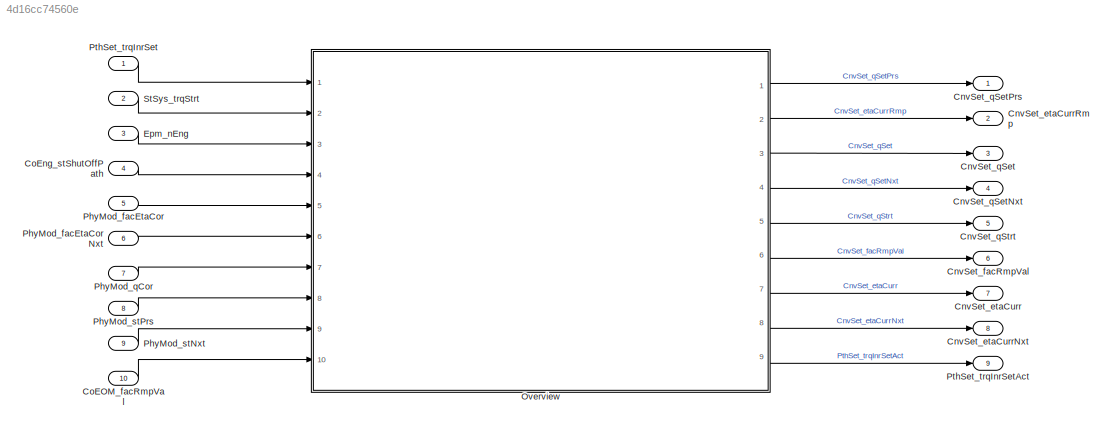
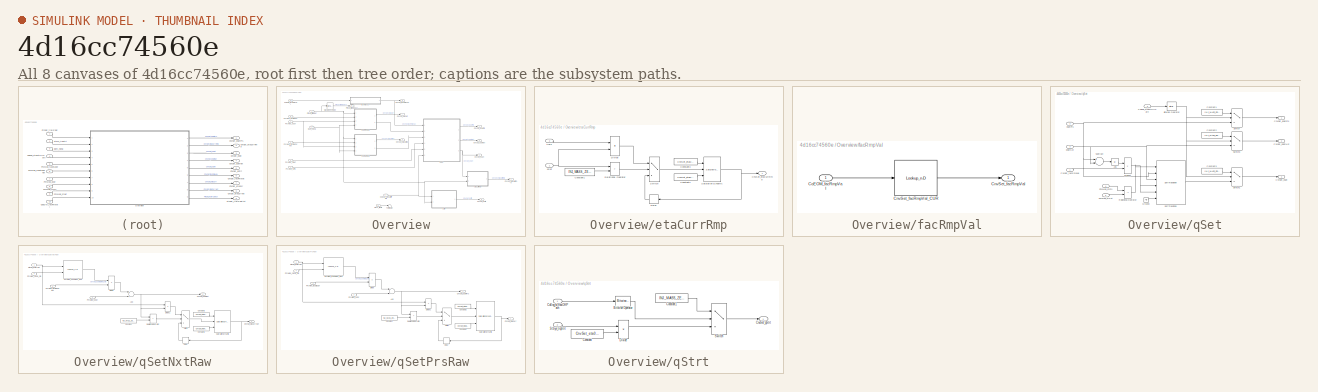
[diagram: thumbnail index - all 8 canvases of the model, root first then tree order]
MODEL slx_4d16cc74560e
KIND model
CONFIG AbsTol = auto
CONFIG EnableMultiTasking = off
CONFIG FixedStep = 0.001
CONFIG MaxStep = auto
CONFIG MinStep = auto
CONFIG RelTol = 1e-3
CONFIG SampleTimeConstraint = Unconstrained
CONFIG Solver = FixedStepDiscrete
CONFIG SolverName = FixedStepDiscrete
CONFIG StartTime = 0.0
CONFIG StopTime = Inf
BLOCK [Outport] CnvSet_etaCurr
  IconDisplay = Port number
  Port = 7
BLOCK [Outport] CnvSet_etaCurrNxt
  IconDisplay = Port number
  Port = 8
BLOCK [Outport] CnvSet_etaCurrRmp
  IconDisplay = Port number
  Port = 2
BLOCK [Outport] CnvSet_facRmpVal
  IconDisplay = Port number
  Port = 6
BLOCK [Outport] CnvSet_qSet
  IconDisplay = Port number
  Port = 3
BLOCK [Outport] CnvSet_qSetNxt
  IconDisplay = Port number
  Port = 4
BLOCK [Outport] CnvSet_qSetPrs
  IconDisplay = Port number
BLOCK [Outport] CnvSet_qStrt
  IconDisplay = Port number
  Port = 5
BLOCK [Inport] CoEOM_facRmpVal
  Description = Central ramp value for operation mode change
  IconDisplay = Port number
  OutDataTypeStr = Fac_10
  OutMax = 31
  OutMin = -31
  Port = 10
  PortDimensions = [1 1]
BLOCK [Inport] CoEng_stShutOffPath
  Description = Active shut-off paths resulting from active reversible,irreversible and afterrun shut-off paths
  IconDisplay = Port number
  OutDataTypeStr = State2
  OutMax = 65535
  OutMin = 0
  Port = 4
  PortDimensions = [1 1]
BLOCK [Inport] Epm_nEng
  Description = Engine speed
  IconDisplay = Port number
  OutDataTypeStr = ERPM
  OutMax = 6000
  OutMin = 0
  Port = 3
  PortDimensions = [1 1]
  Unit = rpm
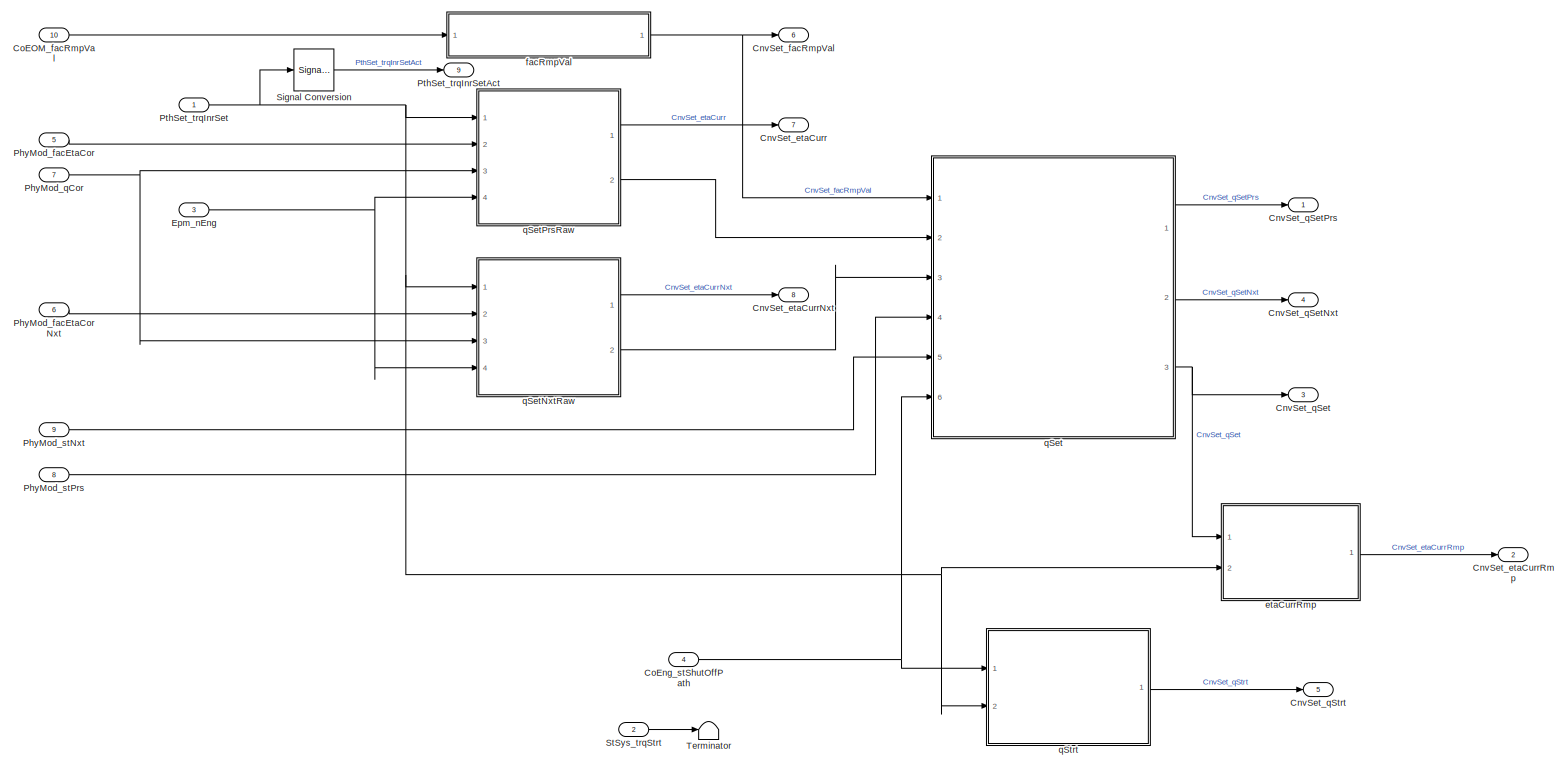
[diagram: Overview - part 1/1, most of the canvas]
BLOCK [SubSystem] Overview
  Ports = [10, 9]
  RequestExecContextInheritance = off
BLOCK [Outport] Overview/CnvSet_etaCurr
  IconDisplay = Port number
  Port = 7
  Tag = Nm/(mg/hub)
BLOCK [Outport] Overview/CnvSet_etaCurrNxt
  IconDisplay = Port number
  Port = 8
  Tag = Nm/(mg/hub)
BLOCK [Outport] Overview/CnvSet_etaCurrRmp
  IconDisplay = Port number
  Port = 2
  Tag = Nm/(mg/hub)
BLOCK [Outport] Overview/CnvSet_facRmpVal
  IconDisplay = Port number
  Port = 6
BLOCK [Outport] Overview/CnvSet_qSet
  IconDisplay = Port number
  Port = 3
  Tag = mg/hub
BLOCK [Outport] Overview/CnvSet_qSetNxt
  IconDisplay = Port number
  Port = 4
  Tag = mg/hub
BLOCK [Outport] Overview/CnvSet_qSetPrs
  IconDisplay = Port number
  Tag = mg/hub
BLOCK [Outport] Overview/CnvSet_qStrt
  IconDisplay = Port number
  Port = 5
  Tag = mg/hub
BLOCK [Inport] Overview/CoEOM_facRmpVal
  IconDisplay = Port number
  Port = 10
BLOCK [Inport] Overview/CoEng_stShutOffPath
  IconDisplay = Port number
  Port = 4
BLOCK [Inport] Overview/Epm_nEng
  IconDisplay = Port number
  Port = 3
  Tag = rpm
BLOCK [Inport] Overview/PhyMod_facEtaCor
  IconDisplay = Port number
  Port = 5
BLOCK [Inport] Overview/PhyMod_facEtaCorNxt
  IconDisplay = Port number
  Port = 6
BLOCK [Inport] Overview/PhyMod_qCor
  IconDisplay = Port number
  Port = 7
  Tag = mg/hub
BLOCK [Inport] Overview/PhyMod_stNxt
  IconDisplay = Port number
  Port = 9
BLOCK [Inport] Overview/PhyMod_stPrs
  IconDisplay = Port number
  Port = 8
BLOCK [Inport] Overview/PthSet_trqInrSet
  IconDisplay = Port number
  Tag = Nm
BLOCK [Outport] Overview/PthSet_trqInrSetAct
  IconDisplay = Port number
  Port = 9
  Tag = Nm
BLOCK [SignalConversion] Overview/Signal Conversion
  OverrideOpt = off
BLOCK [Inport] Overview/StSys_trqStrt
  IconDisplay = Port number
  Port = 2
  Tag = Nm
BLOCK [Terminator] Overview/Terminator
BLOCK [SubSystem] Overview/etaCurrRmp
  Ports = [2, 1]
  RequestExecContextInheritance = off
BLOCK [Outport] Overview/etaCurrRmp/CnvSet_etaCurrRmp
  IconDisplay = Port number
BLOCK [Constant] Overview/etaCurrRmp/Constant1
  Value = INJ_MASS_ZERO
BLOCK [Constant] Overview/etaCurrRmp/Constant2
  Value = CnvSet_etaMin_C
BLOCK [Constant] Overview/etaCurrRmp/Constant3
  Value = CnvSet_etaMax_C
BLOCK [Delay] Overview/etaCurrRmp/Delay
  AttributesFormatString = InitialValue=%<InitialCondition>
  DelayLength = 1
  InitialCondition = 6
  InputPortMap = u0
  Ports = [1, 1]
BLOCK [Product] Overview/etaCurrRmp/Divide
  InputSameDT = off
  Inputs = */
  OutDataTypeStr = Inherit: Inherit via back propagation
  Ports = [2, 1]
  RndMeth = Floor
BLOCK [RelationalOperator] Overview/etaCurrRmp/Relational Operator
  InputSameDT = off
  Operator = >
  OutDataTypeStr = boolean
  Ports = [2, 1]
  RndMeth = Simplest
BLOCK [Reference] Overview/etaCurrRmp/Saturation Dynamic  REF=simulink/Discontinuities/Saturation
Dynamic
  Ports = [3, 1]
  SourceBlock = simulink/Discontinuities/Saturation\nDynamic
  SourceProductBaseCode = SL
  SourceProductName = Simulink
  SourceType = Saturation Dynamic
BLOCK [Switch] Overview/etaCurrRmp/Switch
  Criteria = u2 ~= 0
  OutDataTypeStr = Inherit: Inherit via back propagation
  SaturateOnIntegerOverflow = off
BLOCK [Inport] Overview/etaCurrRmp/qSet
  IconDisplay = Port number
BLOCK [Inport] Overview/etaCurrRmp/trqIn
  IconDisplay = Port number
  Port = 2
BLOCK [SubSystem] Overview/facRmpVal
  Ports = [1, 1]
  RequestExecContextInheritance = off
BLOCK [Outport] Overview/facRmpVal/CnvSet_facRmpVal
  IconDisplay = Port number
BLOCK [Lookup_n-D] Overview/facRmpVal/CnvSet_facRmpVal_CUR
  BreakpointsForDimension1 = CnvSet_facRmpVal_CURX
  ExtrapMethod = Clip
  InternalRulePriority = Speed
  NumberOfTableDimensions = 1
  OutDataTypeStr = Inherit: Inherit via back propagation
  Ports = [1, 1]
  RndMeth = Simplest
  Table = CnvSet_facRmpVal_CUR
BLOCK [Inport] Overview/facRmpVal/CoEOM_facRmpVal
  IconDisplay = Port number
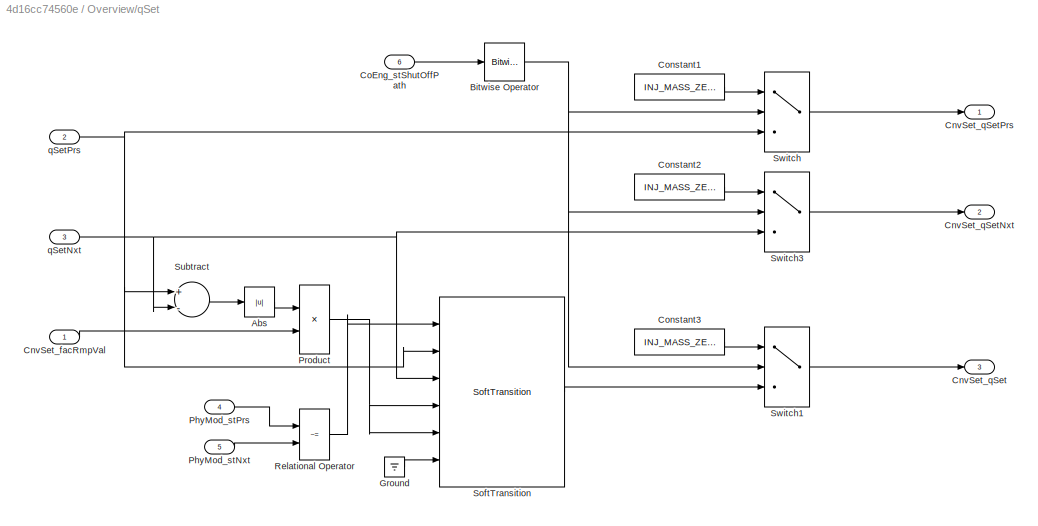
BLOCK [SubSystem] Overview/qSet
  Ports = [6, 3]
  RequestExecContextInheritance = off
BLOCK [Abs] Overview/qSet/Abs
  SaturateOnIntegerOverflow = off
BLOCK [Reference] Overview/qSet/Bitwise Operator  REF=simulink/Logic and Bit
Operations/Bitwise
Operator
  Ports = [1, 1]
  SourceBlock = simulink/Logic and Bit\nOperations/Bitwise\nOperator
  SourceProductBaseCode = SL
  SourceProductName = Simulink
  SourceType = Bitwise Operator
BLOCK [Inport] Overview/qSet/CnvSet_facRmpVal
  IconDisplay = Port number
BLOCK [Outport] Overview/qSet/CnvSet_qSet
  IconDisplay = Port number
  Port = 3
BLOCK [Outport] Overview/qSet/CnvSet_qSetNxt
  IconDisplay = Port number
  Port = 2
BLOCK [Outport] Overview/qSet/CnvSet_qSetPrs
  IconDisplay = Port number
BLOCK [Inport] Overview/qSet/CoEng_stShutOffPath
  IconDisplay = Port number
  Port = 6
BLOCK [Constant] Overview/qSet/Constant1
  OutDataTypeStr = Inherit: Inherit via back propagation
  Value = INJ_MASS_ZERO
BLOCK [Constant] Overview/qSet/Constant2
  OutDataTypeStr = Inherit: Inherit via back propagation
  Value = INJ_MASS_ZERO
BLOCK [Constant] Overview/qSet/Constant3
  OutDataTypeStr = Inherit: Inherit via back propagation
  Value = INJ_MASS_ZERO
BLOCK [Ground] Overview/qSet/Ground
BLOCK [Inport] Overview/qSet/PhyMod_stNxt
  IconDisplay = Port number
  Port = 5
BLOCK [Inport] Overview/qSet/PhyMod_stPrs
  IconDisplay = Port number
  Port = 4
BLOCK [Product] Overview/qSet/Product
  InputSameDT = off
  OutDataTypeStr = Inherit: Inherit via back propagation
  Ports = [2, 1]
  RndMeth = Floor
BLOCK [RelationalOperator] Overview/qSet/Relational Operator
  InputSameDT = off
  Operator = ~=
  OutDataTypeStr = boolean
  Ports = [2, 1]
  RndMeth = Simplest
BLOCK [Reference] Overview/qSet/SoftTransition  REF=sllib/SoftTransition  (lib defined in slx_2b0aa6d284ff)
  Ports = [6, 1]
  SourceBlock = sllib/SoftTransition
  SourceProductName = sllib
  SourceType = SoftTransition
BLOCK [Sum] Overview/qSet/Subtract
  InputSameDT = off
  Inputs = +-
  OutDataTypeStr = Inherit: Inherit via internal rule
  Ports = [2, 1]
BLOCK [Switch] Overview/qSet/Switch
  Criteria = u2 ~= 0
  InputSameDT = off
  OutDataTypeStr = Inherit: Inherit via back propagation
  SaturateOnIntegerOverflow = off
BLOCK [Switch] Overview/qSet/Switch1
  Criteria = u2 ~= 0
  InputSameDT = off
  OutDataTypeStr = Inherit: Inherit via back propagation
  SaturateOnIntegerOverflow = off
BLOCK [Switch] Overview/qSet/Switch3
  Criteria = u2 ~= 0
  InputSameDT = off
  OutDataTypeStr = Inherit: Inherit via back propagation
  SaturateOnIntegerOverflow = off
BLOCK [Inport] Overview/qSet/qSetNxt
  IconDisplay = Port number
  Port = 3
BLOCK [Inport] Overview/qSet/qSetPrs
  IconDisplay = Port number
  Port = 2
BLOCK [SubSystem] Overview/qSetNxtRaw
  Ports = [4, 2]
  RequestExecContextInheritance = off
BLOCK [Sum] Overview/qSetNxtRaw/Add
  OutDataTypeStr = Inherit: Inherit via back propagation
  Ports = [2, 1]
BLOCK [Outport] Overview/qSetNxtRaw/CnvSet_etaCurrNxt
  IconDisplay = Port number
BLOCK [Outport] Overview/qSetNxtRaw/CnvSet_qSetNxt
  IconDisplay = Port number
  Port = 2
BLOCK [Constant] Overview/qSetNxtRaw/Constant
  Value = INJ_MASS_ZERO
BLOCK [Constant] Overview/qSetNxtRaw/Constant1
  Value = CnvSet_etaMin_C
BLOCK [Constant] Overview/qSetNxtRaw/Constant2
  Value = CnvSet_etaMax_C
BLOCK [Delay] Overview/qSetNxtRaw/Delay
  AttributesFormatString = InitialValue=%<InitialCondition>
  DelayLength = 1
  InitialCondition = 6
  InputPortMap = u0
  Ports = [1, 1]
BLOCK [Product] Overview/qSetNxtRaw/Divide
  InputSameDT = off
  Inputs = */
  OutDataTypeStr = Inherit: Inherit via back propagation
  Ports = [2, 1]
  RndMeth = Floor
BLOCK [Product] Overview/qSetNxtRaw/Divide1
  InputSameDT = off
  Inputs = */
  OutDataTypeStr = Inherit: Inherit via back propagation
  Ports = [2, 1]
  RndMeth = Floor
BLOCK [Inport] Overview/qSetNxtRaw/PhyMod_facEtaCorNxt
  IconDisplay = Port number
  Port = 2
BLOCK [Inport] Overview/qSetNxtRaw/PhyMod_nEng_mp
  IconDisplay = Port number
  Port = 4
BLOCK [Inport] Overview/qSetNxtRaw/PhyMod_qCor
  IconDisplay = Port number
  Port = 3
BLOCK [Lookup_n-D] Overview/qSetNxtRaw/PhyMod_trq2qBas_MAP
  BreakpointsForDimension1 = PhyMod_trq2qBas_MAPY
  BreakpointsForDimension1DataTypeStr = Inherit: Inherit from 'Breakpoint data'
  BreakpointsForDimension2 = PhyMod_trq2qBas_MAPX
  BreakpointsForDimension2DataTypeStr = Inherit: Inherit from 'Breakpoint data'
  ExtrapMethod = Clip
  InputSameDT = off
  InternalRulePriority = Speed
  OutDataTypeStr = Inherit: Inherit from 'Table data'
  Ports = [2, 1]
  RndMeth = Simplest
  Table = PhyMod_trq2qBas_MAP
  TableDataTypeStr = Inherit: Inherit from 'Table data'
BLOCK [Inport] Overview/qSetNxtRaw/PthSet_trqInrSet
  IconDisplay = Port number
BLOCK [RelationalOperator] Overview/qSetNxtRaw/Relational Operator
  InputSameDT = off
  Operator = >
  OutDataTypeStr = boolean
  Ports = [2, 1]
  RndMeth = Simplest
BLOCK [Reference] Overview/qSetNxtRaw/Saturation Dynamic  REF=simulink/Discontinuities/Saturation
Dynamic
  Ports = [3, 1]
  SourceBlock = simulink/Discontinuities/Saturation\nDynamic
  SourceProductBaseCode = SL
  SourceProductName = Simulink
  SourceType = Saturation Dynamic
BLOCK [Switch] Overview/qSetNxtRaw/Switch
  Criteria = u2 ~= 0
  OutDataTypeStr = Inherit: Inherit via back propagation
  SaturateOnIntegerOverflow = off
BLOCK [SubSystem] Overview/qSetPrsRaw
  Ports = [4, 2]
  RequestExecContextInheritance = off
BLOCK [Sum] Overview/qSetPrsRaw/Add
  OutDataTypeStr = Inherit: Inherit via back propagation
  Ports = [2, 1]
BLOCK [Outport] Overview/qSetPrsRaw/CnvSet_etaCurr
  IconDisplay = Port number
BLOCK [Outport] Overview/qSetPrsRaw/CnvSet_qSetPrs
  IconDisplay = Port number
  Port = 2
BLOCK [Constant] Overview/qSetPrsRaw/Constant
  Value = INJ_MASS_ZERO
BLOCK [Constant] Overview/qSetPrsRaw/Constant1
  Value = CnvSet_etaMin_C
BLOCK [Constant] Overview/qSetPrsRaw/Constant2
  Value = CnvSet_etaMax_C
BLOCK [Delay] Overview/qSetPrsRaw/Delay
  AttributesFormatString = InitialValue=%<InitialCondition>
  DelayLength = 1
  InitialCondition = 6
  InputPortMap = u0
  Ports = [1, 1]
BLOCK [Product] Overview/qSetPrsRaw/Divide
  InputSameDT = off
  Inputs = */
  OutDataTypeStr = Inherit: Inherit via back propagation
  Ports = [2, 1]
  RndMeth = Floor
BLOCK [Product] Overview/qSetPrsRaw/Divide1
  InputSameDT = off
  Inputs = */
  OutDataTypeStr = Inherit: Inherit via back propagation
  Ports = [2, 1]
  RndMeth = Floor
BLOCK [Inport] Overview/qSetPrsRaw/PhyMod_facEtaCor
  IconDisplay = Port number
  Port = 2
BLOCK [Inport] Overview/qSetPrsRaw/PhyMod_nEng_mp
  IconDisplay = Port number
  Port = 4
BLOCK [Inport] Overview/qSetPrsRaw/PhyMod_qCor
  IconDisplay = Port number
  Port = 3
BLOCK [Lookup_n-D] Overview/qSetPrsRaw/PhyMod_trq2qBas_MAP
  BreakpointsForDimension1 = PhyMod_trq2qBas_MAPY
  BreakpointsForDimension1DataTypeStr = Inherit: Inherit from 'Breakpoint data'
  BreakpointsForDimension2 = PhyMod_trq2qBas_MAPX
  BreakpointsForDimension2DataTypeStr = Inherit: Inherit from 'Breakpoint data'
  ExtrapMethod = Clip
  InputSameDT = off
  InternalRulePriority = Speed
  OutDataTypeStr = Inherit: Inherit from 'Table data'
  Ports = [2, 1]
  RndMeth = Simplest
  Table = PhyMod_trq2qBas_MAP
  TableDataTypeStr = Inherit: Inherit from 'Table data'
BLOCK [Inport] Overview/qSetPrsRaw/PthSet_trqInrSet
  IconDisplay = Port number
BLOCK [RelationalOperator] Overview/qSetPrsRaw/Relational Operator
  InputSameDT = off
  Operator = >
  OutDataTypeStr = boolean
  Ports = [2, 1]
  RndMeth = Simplest
BLOCK [Reference] Overview/qSetPrsRaw/Saturation Dynamic  REF=simulink/Discontinuities/Saturation
Dynamic
  Ports = [3, 1]
  SourceBlock = simulink/Discontinuities/Saturation\nDynamic
  SourceProductBaseCode = SL
  SourceProductName = Simulink
  SourceType = Saturation Dynamic
BLOCK [Switch] Overview/qSetPrsRaw/Switch
  Criteria = u2 ~= 0
  OutDataTypeStr = Inherit: Inherit via back propagation
  SaturateOnIntegerOverflow = off
BLOCK [SubSystem] Overview/qStrt
  Ports = [2, 1]
  RequestExecContextInheritance = off
BLOCK [Reference] Overview/qStrt/Bitwise Operator  REF=simulink/Logic and Bit
Operations/Bitwise
Operator
  Ports = [1, 1]
  SourceBlock = simulink/Logic and Bit\nOperations/Bitwise\nOperator
  SourceProductBaseCode = SL
  SourceProductName = Simulink
  SourceType = Bitwise Operator
BLOCK [Outport] Overview/qStrt/CnvSet_qStrt
  IconDisplay = Port number
BLOCK [Inport] Overview/qStrt/CoEng_stShutOffPath
  IconDisplay = Port number
BLOCK [Constant] Overview/qStrt/Constant
  Value = CnvSet_eta0_C
BLOCK [Constant] Overview/qStrt/Constant1
  Value = INJ_MASS_ZERO
BLOCK [Product] Overview/qStrt/Divide
  InputSameDT = off
  Inputs = */
  OutDataTypeStr = Inherit: Inherit via back propagation
  Ports = [2, 1]
  RndMeth = Floor
BLOCK [Inport] Overview/qStrt/StSys_trqStrt
  IconDisplay = Port number
  Port = 2
BLOCK [Switch] Overview/qStrt/Switch
  Criteria = u2 ~= 0
  InputSameDT = off
  OutDataTypeStr = Inherit: Inherit via back propagation
  SaturateOnIntegerOverflow = off
BLOCK [Inport] PhyMod_facEtaCor
  Description = Current efficiency correction Fac_10
  IconDisplay = Port number
  OutDataTypeStr = Fac_10
  OutMax = 30
  OutMin = -30
  Port = 5
  PortDimensions = [1 1]
BLOCK [Inport] PhyMod_facEtaCorNxt
  Description = next efficiency correction Fac_10
  IconDisplay = Port number
  OutDataTypeStr = Fac_10
  OutMax = 31
  OutMin = -31
  Port = 6
  PortDimensions = [1 1]
BLOCK [Inport] PhyMod_qCor
  Description = Correction quantity
  IconDisplay = Port number
  OutDataTypeStr = InjMass
  OutMax = 319
  OutMin = -319
  Port = 7
  PortDimensions = [1 1]
  Unit = mg/hub
BLOCK [Inport] PhyMod_stNxt
  Description = Next operating mode for the torque structure
  IconDisplay = Port number
  OutDataTypeStr = State
  OutMax = 255
  OutMin = 0
  Port = 9
  PortDimensions = [1 1]
BLOCK [Inport] PhyMod_stPrs
  Description = Current operating mode for the torque structure
  IconDisplay = Port number
  OutDataTypeStr = State
  OutMax = 255
  OutMin = 0
  Port = 8
  PortDimensions = [1 1]
BLOCK [Inport] PthSet_trqInrSet
  Description = Inner torque set value after monitoring limitation
  IconDisplay = Port number
  OutDataTypeStr = Torq
  OutMax = 3276.7
  OutMin = -3000
  PortDimensions = [1 1]
  Unit = Nm
BLOCK [Outport] PthSet_trqInrSetAct
  IconDisplay = Port number
  Port = 9
BLOCK [Inport] StSys_trqStrt
  Description = Engine starting torque
  IconDisplay = Port number
  OutDataTypeStr = Torq
  OutMax = 3000
  OutMin = -3000
  Port = 2
  PortDimensions = [1 1]
  Unit = Nm
LINE CoEOM_facRmpVal:1 -> Overview:10
LINE CoEng_stShutOffPath:1 -> Overview:4
LINE Epm_nEng:1 -> Overview:3
LINE Overview/CoEOM_facRmpVal:1 -> Overview/facRmpVal:1
NET Overview/CoEng_stShutOffPath:1 -> Overview/qSet:6, Overview/qStrt:1
NET Overview/Epm_nEng:1 -> Overview/qSetNxtRaw:4, Overview/qSetPrsRaw:4
LINE Overview/PhyMod_facEtaCor:1 -> Overview/qSetPrsRaw:2
LINE Overview/PhyMod_facEtaCorNxt:1 -> Overview/qSetNxtRaw:2
NET Overview/PhyMod_qCor:1 -> Overview/qSetNxtRaw:3, Overview/qSetPrsRaw:3
LINE Overview/PhyMod_stNxt:1 -> Overview/qSet:5
LINE Overview/PhyMod_stPrs:1 -> Overview/qSet:4
NET Overview/PthSet_trqInrSet:1 -> Overview/Signal Conversion:1, Overview/etaCurrRmp:2, Overview/qSetNxtRaw:1, Overview/qSetPrsRaw:1, Overview/qStrt:2
LINE Overview/Signal Conversion:1 -> Overview/PthSet_trqInrSetAct:1
LINE Overview/StSys_trqStrt:1 -> Overview/Terminator:1
LINE Overview/etaCurrRmp/Constant1:1 -> Overview/etaCurrRmp/Relational Operator:2
LINE Overview/etaCurrRmp/Constant2:1 -> Overview/etaCurrRmp/Saturation Dynamic:3
LINE Overview/etaCurrRmp/Constant3:1 -> Overview/etaCurrRmp/Saturation Dynamic:1
LINE Overview/etaCurrRmp/Delay:1 -> Overview/etaCurrRmp/Switch:3
LINE Overview/etaCurrRmp/Divide:1 -> Overview/etaCurrRmp/Switch:1
LINE Overview/etaCurrRmp/Relational Operator:1 -> Overview/etaCurrRmp/Switch:2
NET Overview/etaCurrRmp/Saturation Dynamic:1 -> Overview/etaCurrRmp/CnvSet_etaCurrRmp:1, Overview/etaCurrRmp/Delay:1
LINE Overview/etaCurrRmp/Switch:1 -> Overview/etaCurrRmp/Saturation Dynamic:2
NET Overview/etaCurrRmp/qSet:1 -> Overview/etaCurrRmp/Divide:2, Overview/etaCurrRmp/Relational Operator:1
LINE Overview/etaCurrRmp/trqIn:1 -> Overview/etaCurrRmp/Divide:1
LINE Overview/etaCurrRmp:1 -> Overview/CnvSet_etaCurrRmp:1
LINE Overview/facRmpVal/CnvSet_facRmpVal_CUR:1 -> Overview/facRmpVal/CnvSet_facRmpVal:1
LINE Overview/facRmpVal/CoEOM_facRmpVal:1 -> Overview/facRmpVal/CnvSet_facRmpVal_CUR:1
NET Overview/facRmpVal:1 -> Overview/CnvSet_facRmpVal:1, Overview/qSet:1
LINE Overview/qSet/Abs:1 -> Overview/qSet/Product:1
NET Overview/qSet/Bitwise Operator:1 -> Overview/qSet/Switch1:2, Overview/qSet/Switch3:2, Overview/qSet/Switch:2
LINE Overview/qSet/CnvSet_facRmpVal:1 -> Overview/qSet/Product:2
LINE Overview/qSet/CoEng_stShutOffPath:1 -> Overview/qSet/Bitwise Operator:1
LINE Overview/qSet/Constant1:1 -> Overview/qSet/Switch:1
LINE Overview/qSet/Constant2:1 -> Overview/qSet/Switch3:1
LINE Overview/qSet/Constant3:1 -> Overview/qSet/Switch1:1
LINE Overview/qSet/Ground:1 -> Overview/qSet/SoftTransition:6
LINE Overview/qSet/PhyMod_stNxt:1 -> Overview/qSet/Relational Operator:2
LINE Overview/qSet/PhyMod_stPrs:1 -> Overview/qSet/Relational Operator:1
NET Overview/qSet/Product:1 -> Overview/qSet/SoftTransition:4, Overview/qSet/SoftTransition:5
LINE Overview/qSet/Relational Operator:1 -> Overview/qSet/SoftTransition:1
LINE Overview/qSet/SoftTransition:1 -> Overview/qSet/Switch1:3
LINE Overview/qSet/Subtract:1 -> Overview/qSet/Abs:1
LINE Overview/qSet/Switch1:1 -> Overview/qSet/CnvSet_qSet:1
LINE Overview/qSet/Switch3:1 -> Overview/qSet/CnvSet_qSetNxt:1
LINE Overview/qSet/Switch:1 -> Overview/qSet/CnvSet_qSetPrs:1
NET Overview/qSet/qSetNxt:1 -> Overview/qSet/SoftTransition:3, Overview/qSet/Subtract:2, Overview/qSet/Switch3:3
NET Overview/qSet/qSetPrs:1 -> Overview/qSet/SoftTransition:2, Overview/qSet/Subtract:1, Overview/qSet/Switch:3
LINE Overview/qSet:1 -> Overview/CnvSet_qSetPrs:1
LINE Overview/qSet:2 -> Overview/CnvSet_qSetNxt:1
NET Overview/qSet:3 -> Overview/CnvSet_qSet:1, Overview/etaCurrRmp:1
NET Overview/qSetNxtRaw/Add:1 -> Overview/qSetNxtRaw/CnvSet_qSetNxt:1, Overview/qSetNxtRaw/Divide1:2, Overview/qSetNxtRaw/Relational Operator:1
LINE Overview/qSetNxtRaw/Constant1:1 -> Overview/qSetNxtRaw/Saturation Dynamic:3
LINE Overview/qSetNxtRaw/Constant2:1 -> Overview/qSetNxtRaw/Saturation Dynamic:1
LINE Overview/qSetNxtRaw/Constant:1 -> Overview/qSetNxtRaw/Relational Operator:2
LINE Overview/qSetNxtRaw/Delay:1 -> Overview/qSetNxtRaw/Switch:3
LINE Overview/qSetNxtRaw/Divide1:1 -> Overview/qSetNxtRaw/Switch:1
LINE Overview/qSetNxtRaw/Divide:1 -> Overview/qSetNxtRaw/Add:1
LINE Overview/qSetNxtRaw/PhyMod_facEtaCorNxt:1 -> Overview/qSetNxtRaw/Divide:2
LINE Overview/qSetNxtRaw/PhyMod_nEng_mp:1 -> Overview/qSetNxtRaw/PhyMod_trq2qBas_MAP:2
LINE Overview/qSetNxtRaw/PhyMod_qCor:1 -> Overview/qSetNxtRaw/Add:2
LINE Overview/qSetNxtRaw/PhyMod_trq2qBas_MAP:1 -> Overview/qSetNxtRaw/Divide:1
NET Overview/qSetNxtRaw/PthSet_trqInrSet:1 -> Overview/qSetNxtRaw/Divide1:1, Overview/qSetNxtRaw/PhyMod_trq2qBas_MAP:1
LINE Overview/qSetNxtRaw/Relational Operator:1 -> Overview/qSetNxtRaw/Switch:2
NET Overview/qSetNxtRaw/Saturation Dynamic:1 -> Overview/qSetNxtRaw/CnvSet_etaCurrNxt:1, Overview/qSetNxtRaw/Delay:1
LINE Overview/qSetNxtRaw/Switch:1 -> Overview/qSetNxtRaw/Saturation Dynamic:2
LINE Overview/qSetNxtRaw:1 -> Overview/CnvSet_etaCurrNxt:1
LINE Overview/qSetNxtRaw:2 -> Overview/qSet:3
NET Overview/qSetPrsRaw/Add:1 -> Overview/qSetPrsRaw/CnvSet_qSetPrs:1, Overview/qSetPrsRaw/Divide1:2, Overview/qSetPrsRaw/Relational Operator:1
LINE Overview/qSetPrsRaw/Constant1:1 -> Overview/qSetPrsRaw/Saturation Dynamic:3
LINE Overview/qSetPrsRaw/Constant2:1 -> Overview/qSetPrsRaw/Saturation Dynamic:1
LINE Overview/qSetPrsRaw/Constant:1 -> Overview/qSetPrsRaw/Relational Operator:2
LINE Overview/qSetPrsRaw/Delay:1 -> Overview/qSetPrsRaw/Switch:3
LINE Overview/qSetPrsRaw/Divide1:1 -> Overview/qSetPrsRaw/Switch:1
LINE Overview/qSetPrsRaw/Divide:1 -> Overview/qSetPrsRaw/Add:1
LINE Overview/qSetPrsRaw/PhyMod_facEtaCor:1 -> Overview/qSetPrsRaw/Divide:2
LINE Overview/qSetPrsRaw/PhyMod_nEng_mp:1 -> Overview/qSetPrsRaw/PhyMod_trq2qBas_MAP:2
LINE Overview/qSetPrsRaw/PhyMod_qCor:1 -> Overview/qSetPrsRaw/Add:2
LINE Overview/qSetPrsRaw/PhyMod_trq2qBas_MAP:1 -> Overview/qSetPrsRaw/Divide:1
NET Overview/qSetPrsRaw/PthSet_trqInrSet:1 -> Overview/qSetPrsRaw/Divide1:1, Overview/qSetPrsRaw/PhyMod_trq2qBas_MAP:1
LINE Overview/qSetPrsRaw/Relational Operator:1 -> Overview/qSetPrsRaw/Switch:2
NET Overview/qSetPrsRaw/Saturation Dynamic:1 -> Overview/qSetPrsRaw/CnvSet_etaCurr:1, Overview/qSetPrsRaw/Delay:1
LINE Overview/qSetPrsRaw/Switch:1 -> Overview/qSetPrsRaw/Saturation Dynamic:2
LINE Overview/qSetPrsRaw:1 -> Overview/CnvSet_etaCurr:1
LINE Overview/qSetPrsRaw:2 -> Overview/qSet:2
LINE Overview/qStrt/Bitwise Operator:1 -> Overview/qStrt/Switch:2
LINE Overview/qStrt/CoEng_stShutOffPath:1 -> Overview/qStrt/Bitwise Operator:1
LINE Overview/qStrt/Constant1:1 -> Overview/qStrt/Switch:1
LINE Overview/qStrt/Constant:1 -> Overview/qStrt/Divide:2
LINE Overview/qStrt/Divide:1 -> Overview/qStrt/Switch:3
LINE Overview/qStrt/StSys_trqStrt:1 -> Overview/qStrt/Divide:1
LINE Overview/qStrt/Switch:1 -> Overview/qStrt/CnvSet_qStrt:1
LINE Overview/qStrt:1 -> Overview/CnvSet_qStrt:1
LINE Overview:1 -> CnvSet_qSetPrs:1
LINE Overview:2 -> CnvSet_etaCurrRmp:1
LINE Overview:3 -> CnvSet_qSet:1
LINE Overview:4 -> CnvSet_qSetNxt:1
LINE Overview:5 -> CnvSet_qStrt:1
LINE Overview:6 -> CnvSet_facRmpVal:1
LINE Overview:7 -> CnvSet_etaCurr:1
LINE Overview:8 -> CnvSet_etaCurrNxt:1
LINE Overview:9 -> PthSet_trqInrSetAct:1
LINE PhyMod_facEtaCor:1 -> Overview:5
LINE PhyMod_facEtaCorNxt:1 -> Overview:6
LINE PhyMod_qCor:1 -> Overview:7
LINE PhyMod_stNxt:1 -> Overview:9
LINE PhyMod_stPrs:1 -> Overview:8
LINE PthSet_trqInrSet:1 -> Overview:1
LINE StSys_trqStrt:1 -> Overview:2
note: NET lines group one-source signal fan-out (src -> all destinations, sorted); 1:1 wires keep LINE
